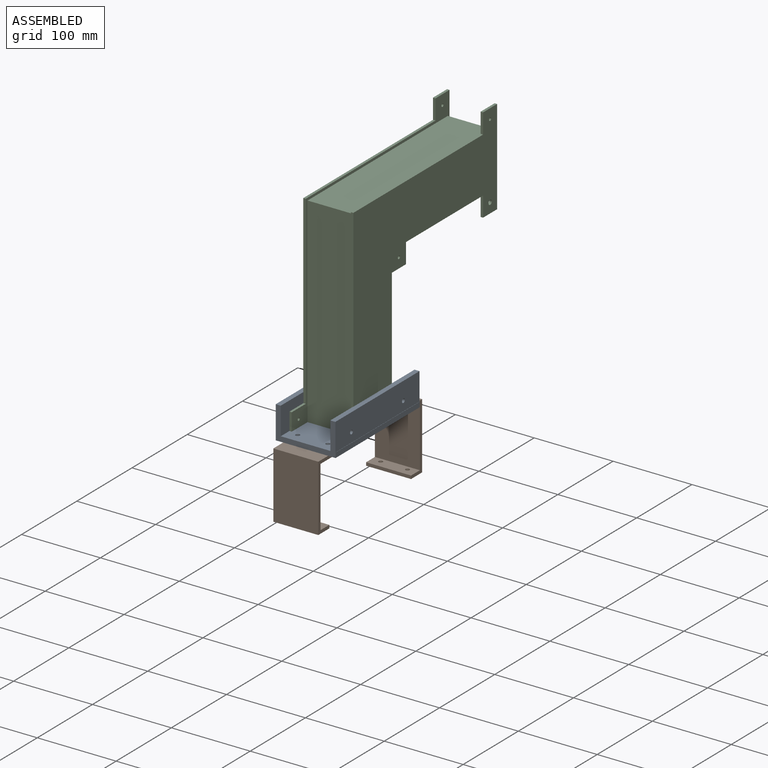
[diagram: assembled view]
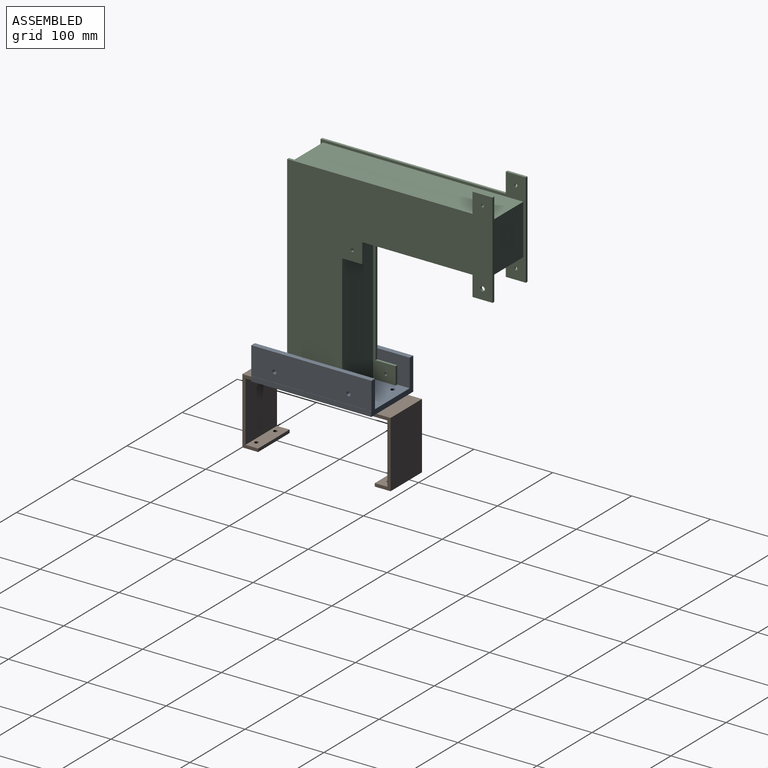
[diagram: assembled view, second angle]
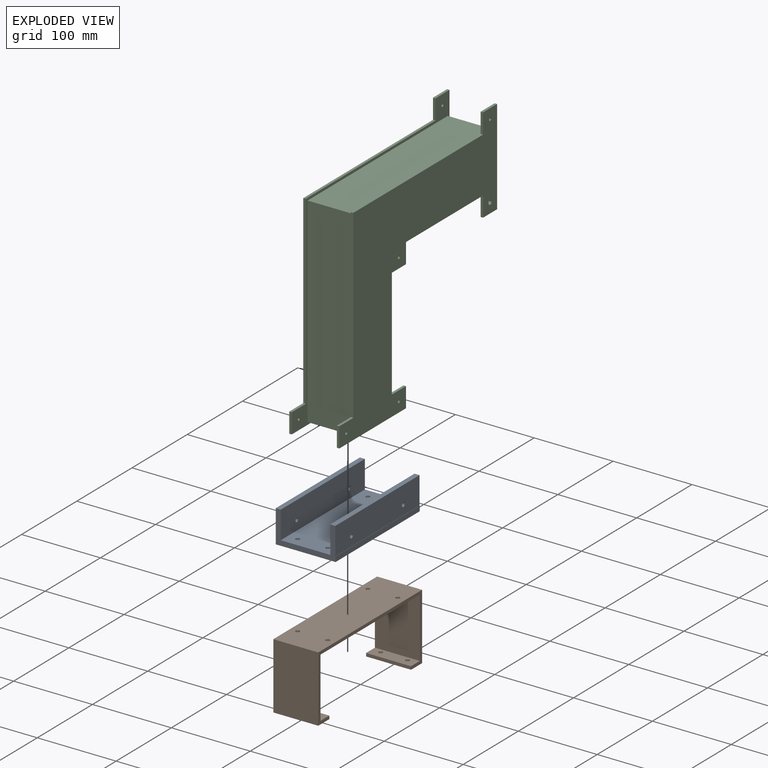
[diagram: exploded view]
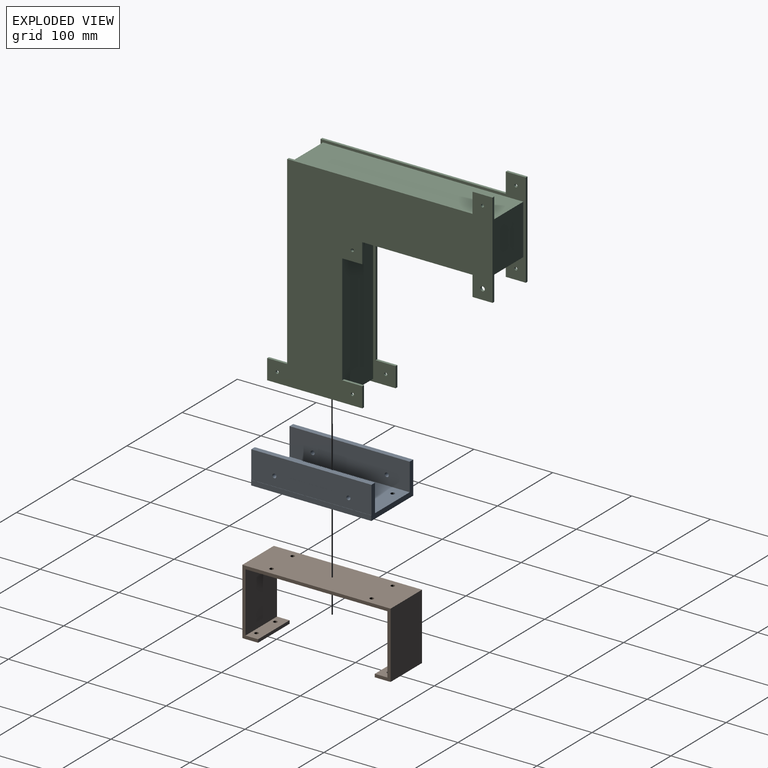
[diagram: exploded view, second angle]
ASSEMBLY  parts=3 mates=2
PART A: 20 faces, bbox 75.9x152.4x41.4 mm
  f0: plane 152.4x62.99mm, normal (0,0,1), area 9518.9mm2, adj f2,f4,f7,f10,f12,f13,f14,f15
  f1: plane 152.4x41.35mm, normal (-1,0,0), area 6261.2mm2, adj f2,f4,f5,f8,f18,f19
  f2: plane 75.95x41.35mm, normal (0,-1,0), area 926.8mm2, adj f0,f1,f3,f5,f6,f7,f8,f9
  f3: plane 152.4x6.35mm, normal (1,0,0), area 967.7mm2, adj f2,f4,f5,f6
  f4: plane 75.95x41.35mm, normal (0,1,0), area 926.8mm2, adj f0,f1,f3,f5,f6,f7,f8,f9
  f5: plane 152.4x75.95mm, normal (0,0,-1), area 11493.1mm2, adj f1,f2,f3,f4,f12,f13,f14,f15
  f6: plane 152.4x0.25mm, normal (0,0,1), area 38.7mm2, adj f2,f3,f4,f9
  f7: plane 152.4x35mm, normal (1,0,0), area 5293.5mm2, adj f0,f2,f4,f8,f18,f19
  f8: plane 152.4x6.35mm, normal (0,0,1), area 967.7mm2, adj f1,f2,f4,f7
  f9: plane 152.4x35mm, normal (1,0,0), area 5293.5mm2, adj f2,f4,f6,f11,f16,f17
  f10: plane 152.4x35mm, normal (-1,0,0), area 5293.5mm2, adj f0,f2,f4,f11,f16,f17
  f11: plane 152.4x6.35mm, normal (0,0,1), area 967.7mm2, adj f2,f4,f9,f10
  f12: cylinder r=2.54mm len=6.35mm, axis (0,0,-1), area 101.3mm2, adj f0,f5
  f13: cylinder r=2.54mm len=6.35mm, axis (0,0,-1), area 101.3mm2, adj f0,f5
  f14: cylinder r=2.54mm len=6.35mm, axis (0,0,-1), area 101.3mm2, adj f0,f5
  f15: cylinder r=2.54mm len=6.35mm, axis (0,0,-1), area 101.3mm2, adj f0,f5
  f16: cylinder r=2.54mm len=6.35mm, axis (1,0,0), area 101.3mm2, adj f9,f10
  f17: cylinder r=2.54mm len=6.35mm, axis (1,0,0), area 101.3mm2, adj f9,f10
  f18: cylinder r=2.54mm len=6.35mm, axis (1,0,0), area 101.3mm2, adj f1,f7
  f19: cylinder r=2.54mm len=6.35mm, axis (1,0,0), area 101.3mm2, adj f1,f7
PART B: 22 faces, bbox 188x84x57 mm
  f0: plane 57x16mm, normal (0,1,0), area 871.5mm2, adj f1,f11,f12,f13,f14,f15
  f1: plane 76x57mm, normal (1,0,0), area 4332mm2, adj f0,f2,f12,f13
  f2: plane 180x57mm, normal (0,-1,0), area 10178.9mm2, adj f1,f3,f12,f13,f18,f19,f20,f21
  f3: plane 76x57mm, normal (-1,0,0), area 4332mm2, adj f2,f4,f12,f13
  f4: plane 57x16mm, normal (0,1,0), area 871.5mm2, adj f3,f5,f12,f13,f16,f17
  f5: plane 57x4mm, normal (-1,0,0), area 228mm2, adj f4,f6,f12,f13
  f6: plane 57x20mm, normal (0,-1,0), area 1099.5mm2, adj f5,f7,f12,f13,f16,f17
  f7: plane 84x57mm, normal (1,0,0), area 4788mm2, adj f6,f8,f12,f13
  f8: plane 188x57mm, normal (0,1,0), area 10634.9mm2, adj f7,f9,f12,f13,f18,f19,f20,f21
  f9: plane 84x57mm, normal (-1,0,0), area 4788mm2, adj f8,f10,f12,f13
  f10: plane 57x20mm, normal (0,-1,0), area 1099.5mm2, adj f9,f11,f12,f13,f14,f15
  f11: plane 57x4mm, normal (1,0,0), area 228mm2, adj f0,f10,f12,f13
  f12: plane 188x84mm, normal (0,0,1), area 1520mm2, adj f0,f1,f2,f3,f4,f5,f6,f7
  f13: plane 188x84mm, normal (0,0,-1), area 1520mm2, adj f0,f1,f2,f3,f4,f5,f6,f7
  f14: cylinder r=2.54mm len=5.08mm, axis (0,1,0), area 63.8mm2, adj f0,f10
  f15: cylinder r=2.54mm len=5.08mm, axis (0,1,0), area 63.8mm2, adj f0,f10
  f16: cylinder r=2.54mm len=5.08mm, axis (0,1,0), area 63.8mm2, adj f4,f6
  f17: cylinder r=2.54mm len=5.08mm, axis (0,1,0), area 63.8mm2, adj f4,f6
  f18: cylinder r=2.54mm len=5.08mm, axis (0,1,0), area 63.8mm2, adj f2,f8
  f19: cylinder r=2.54mm len=5.08mm, axis (0,1,0), area 63.8mm2, adj f2,f8
  f20: cylinder r=2.54mm len=5.08mm, axis (0,1,0), area 63.8mm2, adj f2,f8
  f21: cylinder r=2.54mm len=5.08mm, axis (0,1,0), area 63.8mm2, adj f2,f8
PART C: 52 faces, bbox 285.8x285.8x63.5 mm
  f0: plane 190.5x57.15mm, normal (-1,0,0), area 10887.1mm2, adj f1,f5,f28,f29
  f1: plane 190.5x57.15mm, normal (0,1,0), area 10887.1mm2, adj f0,f2,f28,f29
  f2: plane 63.5x57.15mm, normal (-1,0,0), area 3629mm2, adj f1,f3,f28,f29
  f3: plane 254x57.15mm, normal (0,-1,0), area 14516.1mm2, adj f2,f4,f28,f29
  f4: plane 254x57.15mm, normal (1,0,0), area 14516.1mm2, adj f3,f5,f28,f29
  f5: plane 63.5x57.15mm, normal (0,1,0), area 3629mm2, adj f0,f4,f28,f29
  f6: plane 120.65x3.18mm, normal (0,1,0), area 383.1mm2, adj f7,f26,f27,f28
  f7: plane 25.4x3.18mm, normal (1,0,0), area 80.6mm2, adj f6,f8,f27,f28
  f8: plane 25.4x3.18mm, normal (0,-1,0), area 80.6mm2, adj f7,f9,f27,f28
  f9: plane 234.95x3.18mm, normal (1,0,0), area 746mm2, adj f8,f10,f27,f28
  f10: plane 234.95x3.18mm, normal (0,-1,0), area 746mm2, adj f9,f11,f27,f28
  f11: plane 25.4x3.18mm, normal (1,0,0), area 80.6mm2, adj f10,f12,f27,f28
  f12: plane 25.4x3.18mm, normal (0,-1,0), area 80.6mm2, adj f11,f13,f27,f28
  f13: plane 120.65x3.18mm, normal (-1,0,0), area 383.1mm2, adj f12,f14,f27,f28
  f14: plane 25.4x3.18mm, normal (0,1,0), area 80.6mm2, adj f13,f15,f27,f28
  f15: plane 25.4x3.18mm, normal (1,0,0), area 80.6mm2, adj f14,f16,f27,f28
  f16: plane 139.7x3.18mm, normal (0,1,0), area 443.5mm2, adj f15,f17,f27,f28
  f17: plane 25.4x3.18mm, normal (-1,0,0), area 80.6mm2, adj f16,f18,f27,f28
  f18: plane 25.4x3.18mm, normal (0,1,0), area 80.6mm2, adj f17,f19,f27,f28
  f19: plane 139.7x3.18mm, normal (-1,0,0), area 443.5mm2, adj f18,f20,f27,f28
  f20: plane 25.4x3.18mm, normal (0,-1,0), area 80.6mm2, adj f19,f26,f27,f28
  f21: cylinder r=1.91mm len=3.81mm, axis (0,0,1), area 38mm2, adj f27,f28
  f22: cylinder r=1.91mm len=3.81mm, axis (0,0,1), area 38mm2, adj f27,f28
  f23: cylinder r=1.91mm len=3.81mm, axis (0,0,1), area 38mm2, adj f27,f28
  f24: cylinder r=2.86mm len=5.73mm, axis (0,0,1), area 57.1mm2, adj f27,f28
  f25: cylinder r=1.91mm len=3.81mm, axis (0,0,1), area 38mm2, adj f27,f28
  f26: plane 25.4x3.18mm, normal (-1,0,0), area 80.6mm2, adj f6,f20,f27,f28
  f27: plane 285.75x285.75mm, normal (0,0,-1), area 34646.3mm2, adj f6,f7,f8,f9,f10,f11,f12,f13
  f28: plane 285.75x285.75mm, normal (0,0,1), area 6420.6mm2, adj f0,f1,f2,f3,f4,f5,f6,f7
  f29: plane 285.75x285.75mm, normal (0,0,-1), area 6434.9mm2, adj f0,f1,f2,f3,f4,f5,f30,f31
  f30: plane 25.4x3.18mm, normal (0,-1,0), area 80.6mm2, adj f29,f31,f50,f51
  f31: plane 25.4x3.18mm, normal (1,0,0), area 80.6mm2, adj f29,f30,f32,f51
  f32: plane 234.95x3.18mm, normal (0,-1,0), area 746mm2, adj f29,f31,f33,f51
  f33: plane 234.95x3.18mm, normal (1,0,0), area 746mm2, adj f29,f32,f34,f51
  f34: plane 25.4x3.18mm, normal (0,-1,0), area 80.6mm2, adj f29,f33,f35,f51
  f35: plane 25.4x3.18mm, normal (1,0,0), area 80.6mm2, adj f29,f34,f36,f51
  f36: plane 120.65x3.18mm, normal (0,1,0), area 383.1mm2, adj f29,f35,f37,f51
  f37: plane 25.4x3.18mm, normal (-1,0,0), area 80.6mm2, adj f29,f36,f38,f51
  f38: plane 25.4x3.18mm, normal (0,-1,0), area 80.6mm2, adj f29,f37,f39,f51
  f39: plane 139.7x3.18mm, normal (-1,0,0), area 443.5mm2, adj f29,f38,f40,f51
  f40: plane 25.4x3.18mm, normal (0,1,0), area 80.6mm2, adj f29,f39,f41,f51
  f41: plane 25.4x3.18mm, normal (-1,0,0), area 80.6mm2, adj f29,f40,f42,f51
  f42: plane 139.7x3.18mm, normal (0,1,0), area 443.5mm2, adj f29,f41,f43,f51
  f43: plane 25.4x3.18mm, normal (1,0,0), area 80.6mm2, adj f29,f42,f44,f51
  f44: plane 25.4x3.18mm, normal (0,1,0), area 80.6mm2, adj f29,f43,f50,f51
  f45: cylinder r=1.91mm len=3.81mm, axis (0,0,-1), area 38mm2, adj f29,f51
  f46: cylinder r=1.91mm len=3.81mm, axis (0,0,-1), area 38mm2, adj f29,f51
  f47: cylinder r=1.91mm len=3.81mm, axis (0,0,-1), area 38mm2, adj f29,f51
  f48: cylinder r=1.91mm len=3.81mm, axis (0,0,-1), area 38mm2, adj f29,f51
  f49: cylinder r=1.91mm len=3.81mm, axis (0,0,-1), area 38mm2, adj f29,f51
  f50: plane 120.65x3.18mm, normal (-1,0,0), area 383.1mm2, adj f29,f30,f44,f51
  f51: plane 285.75x285.75mm, normal (0,0,1), area 34660.7mm2, adj f30,f31,f32,f33,f34,f35,f36,f37
PLACE A t=(-35.07,-3.67,-97.5)mm
PLACE B rot(axis=(0.58,-0.58,-0.58),120deg) t=(31.4,182.53,-187.85)mm
PLACE C rot(axis=(0,-1,0),90deg) t=(31.35,104.28,93)mm
MATE fastened C.f2 <-> A.f0  axis (0,0,-1) through (2.77,72.53,-97.5)mm
MATE fastened B.f8 <-> A.f5  axis (0,0,1) through (2.9,72.53,-103.85)mm
